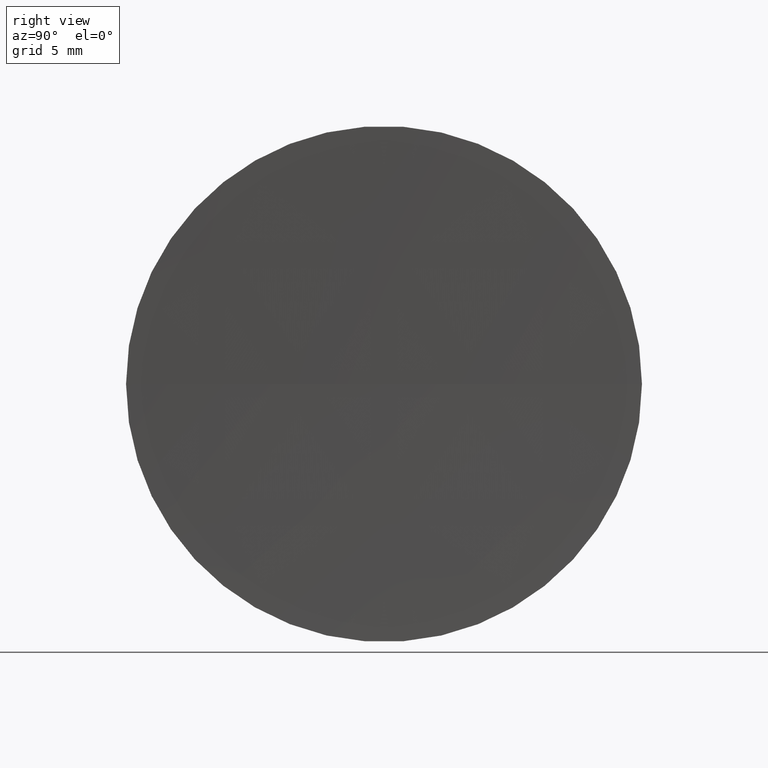
[diagram: clean part render]
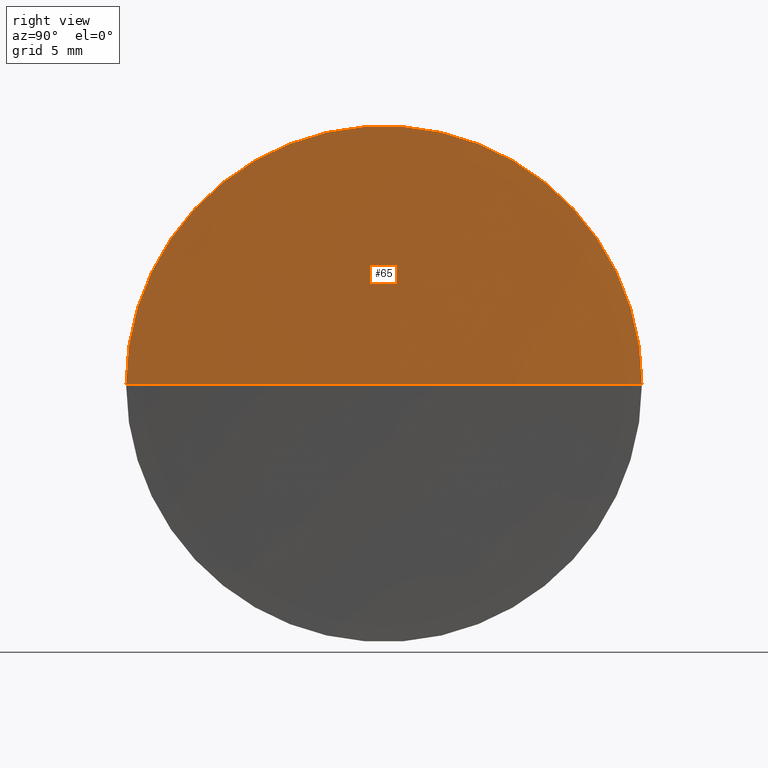
[diagram: same view with one face highlighted and labeled with its STEP entity id]
A machine part, right view. The second image highlights one B-rep face of the part: STEP entity #65.
In plain terms, the highlighted spherical surface has radius 371.3 mm.
Its self-contained STEP definition (entity closure, byte-faithful):
#1 = SPHERICAL_SURFACE ( 'NONE', #110, 371.3000000000000700 ) ;
#4 = DIRECTION ( 'NONE',  ( -1.000000000000000000, -6.937607244762875000E-016, -0.0000000000000000000 ) ) ;
#6 = DIRECTION ( 'NONE',  ( 0.0000000000000000000, -1.000000000000000000, 0.0000000000000000000 ) ) ;
#12 = VERTEX_POINT ( 'NONE', #79 ) ;
#20 = EDGE_CURVE ( 'NONE', #12, #52, #28, .T. ) ;
#28 = CIRCLE ( 'NONE', #88, 12.49999999999990800 ) ;
#31 = FACE_OUTER_BOUND ( 'NONE', #146, .T. ) ;
#42 = CARTESIAN_POINT ( 'NONE',  ( 125.5121936984948100, 65.21684047094019800, 0.0000000000000000000 ) ) ;
#52 = VERTEX_POINT ( 'NONE', #76 ) ;
#54 = DIRECTION ( 'NONE',  ( 0.0000000000000000000, -0.0000000000000000000, 1.000000000000000000 ) ) ;
#65 = ADVANCED_FACE ( 'NONE', ( #31 ), #1, .F. ) ;
#76 = CARTESIAN_POINT ( 'NONE',  ( 125.7226627224782000, 77.71684047094014100, 0.0000000000000000000 ) ) ;
#79 = CARTESIAN_POINT ( 'NONE',  ( 125.7226627224782000, 52.71684047094036900, -1.530808498934169000E-015 ) ) ;
#83 = DIRECTION ( 'NONE',  ( 1.000000000000000000, 0.0000000000000000000, 0.0000000000000000000 ) ) ;
#88 = AXIS2_PLACEMENT_3D ( 'NONE', #147, #4, #6 ) ;
#92 = ORIENTED_EDGE ( 'NONE', *, *, #167, .F. ) ;
#94 = DIRECTION ( 'NONE',  ( -8.496118506040342700E-032, 1.224646799147353200E-016, -1.000000000000000000 ) ) ;
#100 = CARTESIAN_POINT ( 'NONE',  ( 496.8121936984948700, 65.21684047094044000, 0.0000000000000000000 ) ) ;
#102 = DIRECTION ( 'NONE',  ( -7.475242557400729000E-016, 1.000000000000000000, 0.0000000000000000000 ) ) ;
#106 = ORIENTED_EDGE ( 'NONE', *, *, #188, .T. ) ;
#110 = AXIS2_PLACEMENT_3D ( 'NONE', #100, #168, #102 ) ;
#119 = AXIS2_PLACEMENT_3D ( 'NONE', #155, #94, #124 ) ;
#124 = DIRECTION ( 'NONE',  ( 0.0000000000000000000, 1.000000000000000000, 1.224646799147353200E-016 ) ) ;
#146 = EDGE_LOOP ( 'NONE', ( #161, #106, #92 ) ) ;
#147 = CARTESIAN_POINT ( 'NONE',  ( 125.7226627224781800, 65.21684047094032600, 0.0000000000000000000 ) ) ;
#155 = CARTESIAN_POINT ( 'NONE',  ( 496.8121936984948700, 65.21684047094044000, 0.0000000000000000000 ) ) ;
#158 = CIRCLE ( 'NONE', #189, 371.3000000000001300 ) ;
#161 = ORIENTED_EDGE ( 'NONE', *, *, #20, .F. ) ;
#163 = VERTEX_POINT ( 'NONE', #42 ) ;
#167 = EDGE_CURVE ( 'NONE', #52, #163, #158, .T. ) ;
#168 = DIRECTION ( 'NONE',  ( 0.0000000000000000000, 0.0000000000000000000, -1.000000000000000000 ) ) ;
#170 = CARTESIAN_POINT ( 'NONE',  ( 496.8121936984948700, 65.21684047094044000, 0.0000000000000000000 ) ) ;
#175 = CIRCLE ( 'NONE', #119, 371.3000000000000700 ) ;
#188 = EDGE_CURVE ( 'NONE', #12, #163, #175, .T. ) ;
#189 = AXIS2_PLACEMENT_3D ( 'NONE', #170, #54, #83 ) ;